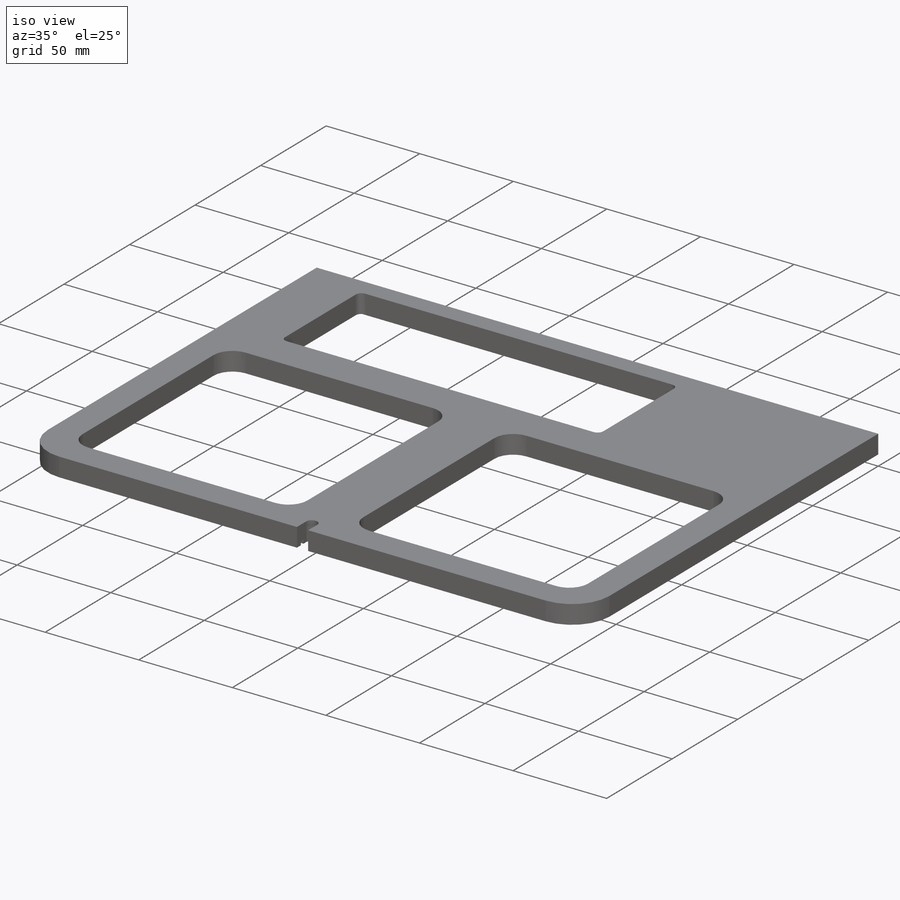
[diagram: iso view]
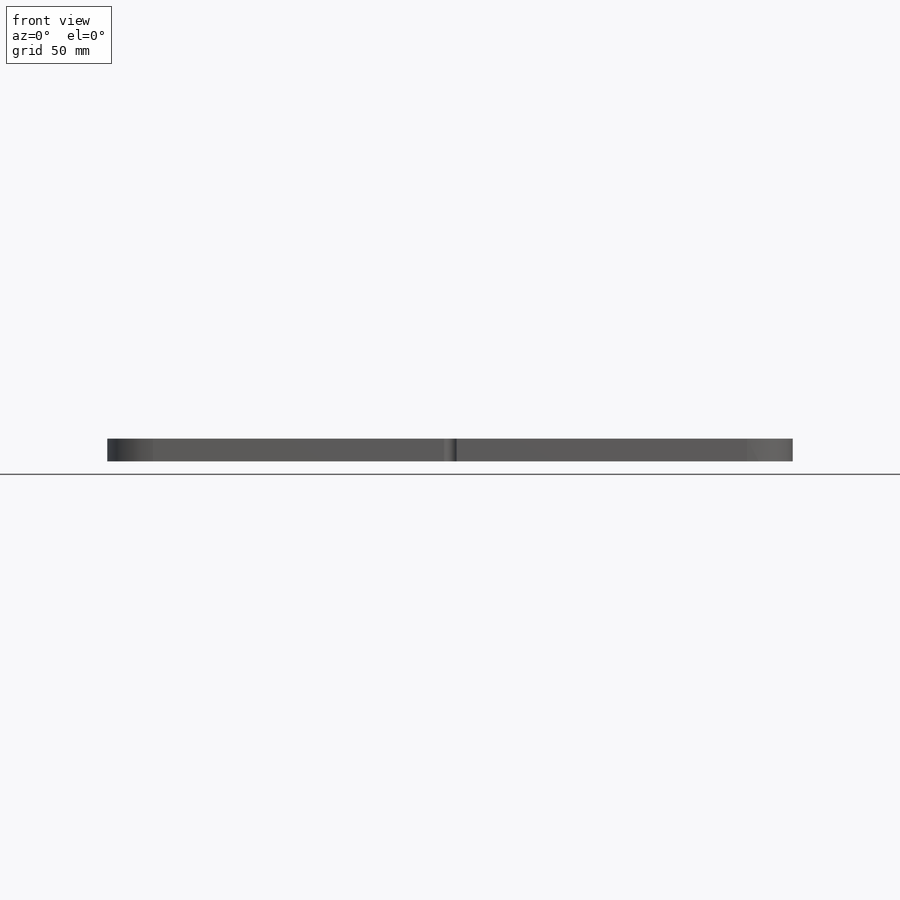
[diagram: front view]
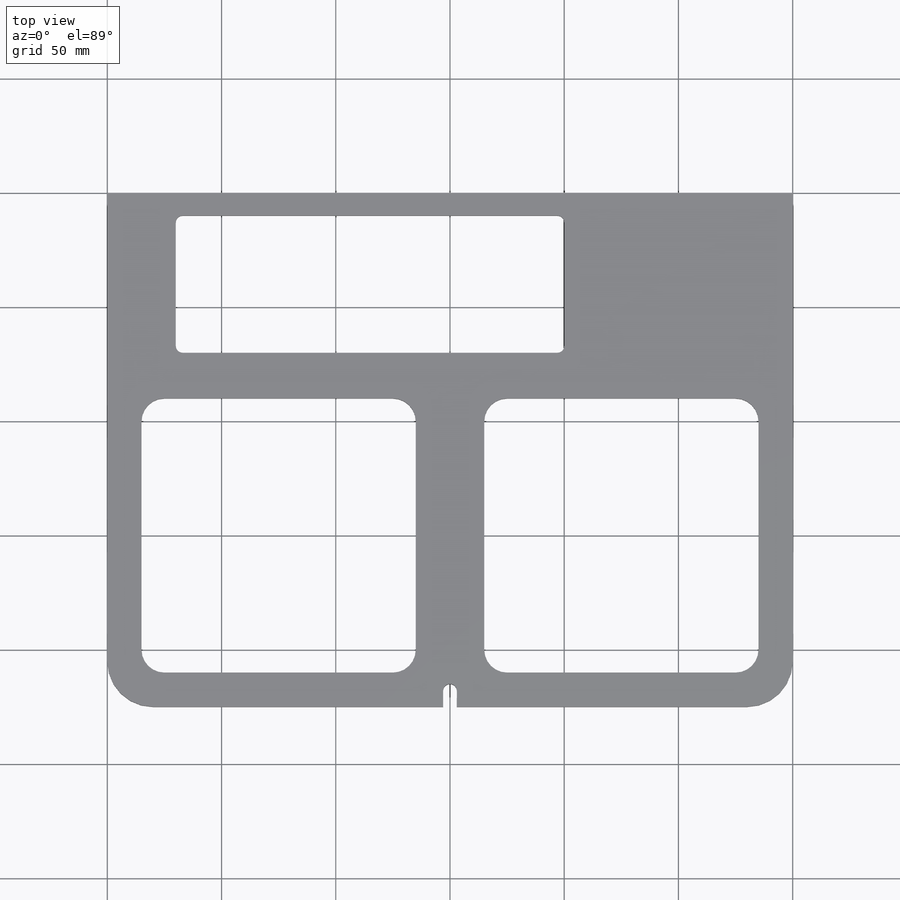
[diagram: top view]
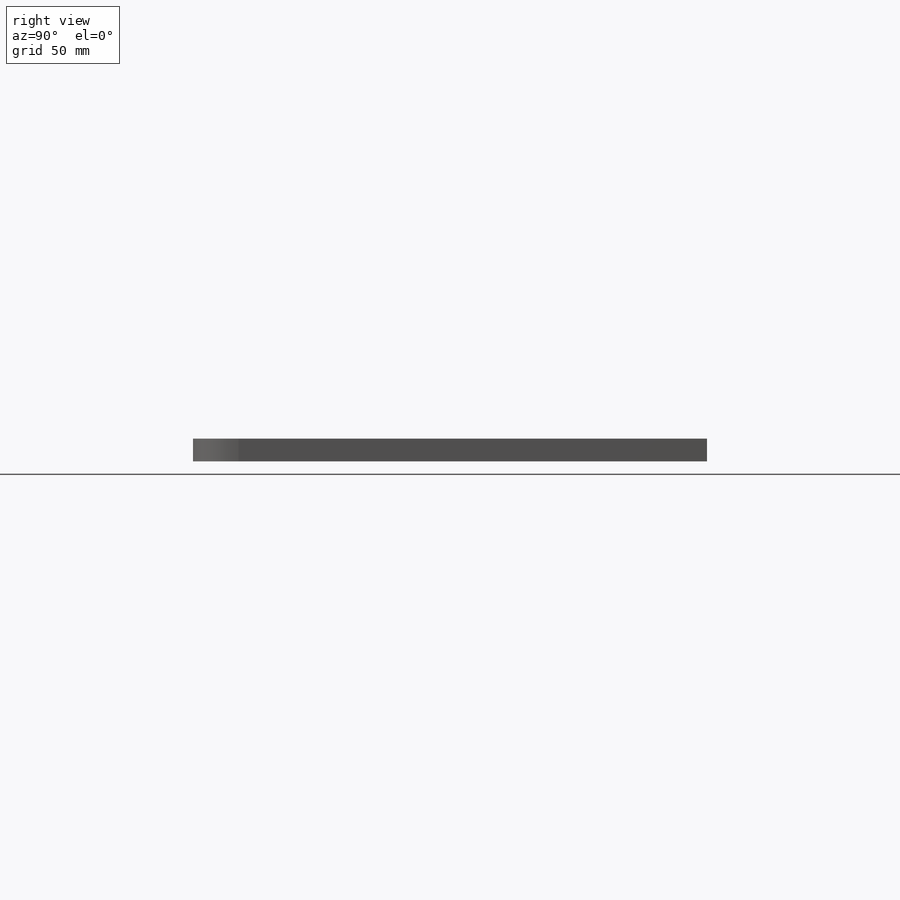
[diagram: right view]
SOLIDWORKS PART (.sldprt)
format: sldprt  version: not decoded by parser v0  size: 316,928 bytes
history: native  units: mm
features: sketch x4, plane x3, cut_extrude x3, mirror x2, material x1, extrude x1, fillet x1 (+13 scaffold rows collapsed)
feature tree (28):
  scaffold x13  (default folders/planes/origin — collapsed)
  material  "Material <nicht festgelegt>"
  plane  "Ebene vorne"
  plane  "Ebene oben"
  plane  "Ebene rechts"
  sketch  "Skizze1"  dims[D1=120.0mm D2=150.0mm D3=~118.594243mm]
  extrude  "Linear austragen1"  Depth=10mm
  fillet  "Verrundung2"  Radius=10mm
  mirror  "Spiegeln1"
  sketch  "Skizze3"  dims[c1.D1=30.0mm c1.D2=10.0mm c1.D3=70.0mm c1.D4=60.0mm c2.D3=50.0mm]
  cut_extrude  "Schnitt-Linear austragen1"  Depth=10mm
  mirror  "Verrundung3"
  sketch  "Skizze4"  dims[D2=3.0mm D1=7.0mm]
  cut_extrude  "Schnitt-Linear austragen2"  Depth=10mm
  sketch  "Skizze5"  dims[D1=14.0mm D2=2.0mm D3=3.0mm]
  cut_extrude  "Schnitt-Linear austragen3"  Depth=2mm
decode coverage: 9 of 11 modeling features carry decoded parameters
note: ~ marks probable driven/reference dimensions
note: suppression state not decoded; provenance and decode notes live in map.json
